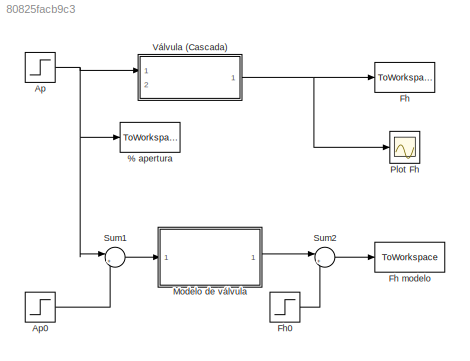
MODEL slx_80825facb9c3
KIND model
BLOCK [ToWorkspace] % apertura
  MaxDataPoints = inf
  Ports = [1]
  SaveFormat = Structure With Time
  VariableName = Ap
BLOCK [Step] Ap
  After = Ap0*1.04
  Before = Ap0
  SampleTime = 1
  Time = 10
BLOCK [Step] Ap0
  After = Ap0
  Before = Ap0
  SampleTime = 1
  Time = 0
BLOCK [ToWorkspace] Fh
  MaxDataPoints = inf
  Ports = [1]
  SaveFormat = Structure With Time
  VariableName = F_h
BLOCK [ToWorkspace] Fh modelo
  MaxDataPoints = inf
  Ports = [1]
  SaveFormat = Structure With Time
  VariableName = F_h_modelo
BLOCK [Step] Fh0
  After = Fh0
  Before = Fh0
  SampleTime = 1
  Time = 0
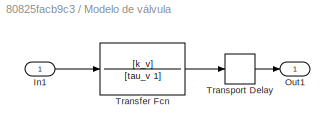
BLOCK [SubSystem] Modelo de válvula
  Ports = [1, 1]
  RequestExecContextInheritance = off
BLOCK [Inport] Modelo de válvula/In1
  IconDisplay = Port number
BLOCK [Outport] Modelo de válvula/Out1
  IconDisplay = Port number
BLOCK [TransferFcn] Modelo de válvula/Transfer Fcn
  Denominator = [tau_v 1]
  Numerator = [k_v]
BLOCK [TransportDelay] Modelo de válvula/Transport Delay
  DelayTime = tita_v
  Ports = [1, 1]
BLOCK [Scope] Plot Fh
  Floating = off
  NumInputPorts = 1
  Ports = [1]
  SaveName = ScopeData1
  ShowLegends = off
  ZoomMode = yonly
BLOCK [Sum] Sum1
  IconShape = round
  InputSameDT = off
  Inputs = |+-
  OutDataTypeStr = Inherit: Inherit via internal rule
  Ports = [2, 1]
  SaturateOnIntegerOverflow = off
BLOCK [Sum] Sum2
  IconShape = round
  InputSameDT = off
  Inputs = |++
  OutDataTypeStr = Inherit: Inherit via internal rule
  Ports = [2, 1]
  SaturateOnIntegerOverflow = off
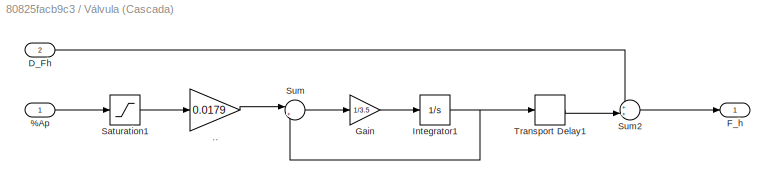
BLOCK [SubSystem] Válvula (Cascada)
  Ports = [2, 1]
  RequestExecContextInheritance = off
BLOCK [Inport] Válvula (Cascada)/%Ap
  IconDisplay = Port number
BLOCK [Gain] Válvula (Cascada)/..
  Gain = 0.0179
  OutDataTypeStr = Inherit: Inherit via internal rule
  ParamDataTypeStr = Inherit: Inherit via internal rule
  SaturateOnIntegerOverflow = off
BLOCK [Inport] Válvula (Cascada)/D_Fh
  IconDisplay = Port number
  Port = 2
BLOCK [Outport] Válvula (Cascada)/F_h
  IconDisplay = Port number
BLOCK [Gain] Válvula (Cascada)/Gain
  Gain = 1/3.5
  OutDataTypeStr = Inherit: Inherit via internal rule
  ParamDataTypeStr = Inherit: Inherit via internal rule
  SaturateOnIntegerOverflow = off
BLOCK [Integrator] Válvula (Cascada)/Integrator1
  InitialCondition = Fh0
  Ports = [1, 1]
BLOCK [Saturate] Válvula (Cascada)/Saturation1
  InputPortMap = u0
  LowerLimit = 0
  Ports = [1, 1]
  UpperLimit = 100
BLOCK [Sum] Válvula (Cascada)/Sum
  IconShape = round
  InputSameDT = off
  Inputs = |+-
  OutDataTypeStr = Inherit: Inherit via internal rule
  Ports = [2, 1]
  SaturateOnIntegerOverflow = off
BLOCK [Sum] Válvula (Cascada)/Sum2
  IconShape = round
  InputSameDT = off
  Inputs = ++|
  OutDataTypeStr = Inherit: Inherit via internal rule
  Ports = [2, 1]
  SaturateOnIntegerOverflow = off
BLOCK [TransportDelay] Válvula (Cascada)/Transport Delay1
  InitialOutput = Fh0
  Ports = [1, 1]
LINE Ap0:1 -> Sum1:2
NET Ap:1 -> % apertura:1, Sum1:1, Válvula (Cascada):1
LINE Fh0:1 -> Sum2:2
LINE Modelo de válvula/In1:1 -> Modelo de válvula/Transfer Fcn:1
LINE Modelo de válvula/Transfer Fcn:1 -> Modelo de válvula/Transport Delay:1
LINE Modelo de válvula/Transport Delay:1 -> Modelo de válvula/Out1:1
LINE Modelo de válvula:1 -> Sum2:1
LINE Sum1:1 -> Modelo de válvula:1
LINE Sum2:1 -> Fh modelo:1
LINE Válvula (Cascada)/%Ap:1 -> Válvula (Cascada)/Saturation1:1
LINE Válvula (Cascada)/..:1 -> Válvula (Cascada)/Sum:1
LINE Válvula (Cascada)/D_Fh:1 -> Válvula (Cascada)/Sum2:1
LINE Válvula (Cascada)/Gain:1 -> Válvula (Cascada)/Integrator1:1
NET Válvula (Cascada)/Integrator1:1 -> Válvula (Cascada)/Sum:2, Válvula (Cascada)/Transport Delay1:1
LINE Válvula (Cascada)/Saturation1:1 -> Válvula (Cascada)/..:1
LINE Válvula (Cascada)/Sum2:1 -> Válvula (Cascada)/F_h:1
LINE Válvula (Cascada)/Sum:1 -> Válvula (Cascada)/Gain:1
LINE Válvula (Cascada)/Transport Delay1:1 -> Válvula (Cascada)/Sum2:2
NET Válvula (Cascada):1 -> Fh:1, Plot Fh:1
note: NET lines group one-source signal fan-out (src -> all destinations, sorted); 1:1 wires keep LINE
